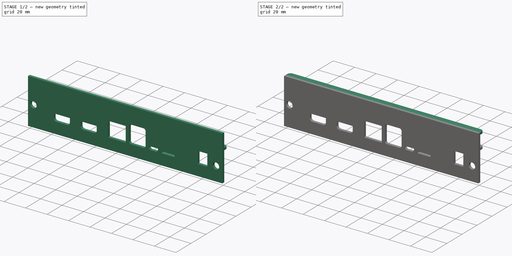
[diagram: build sequence overview — one tinted view per stage of 2, left to right]
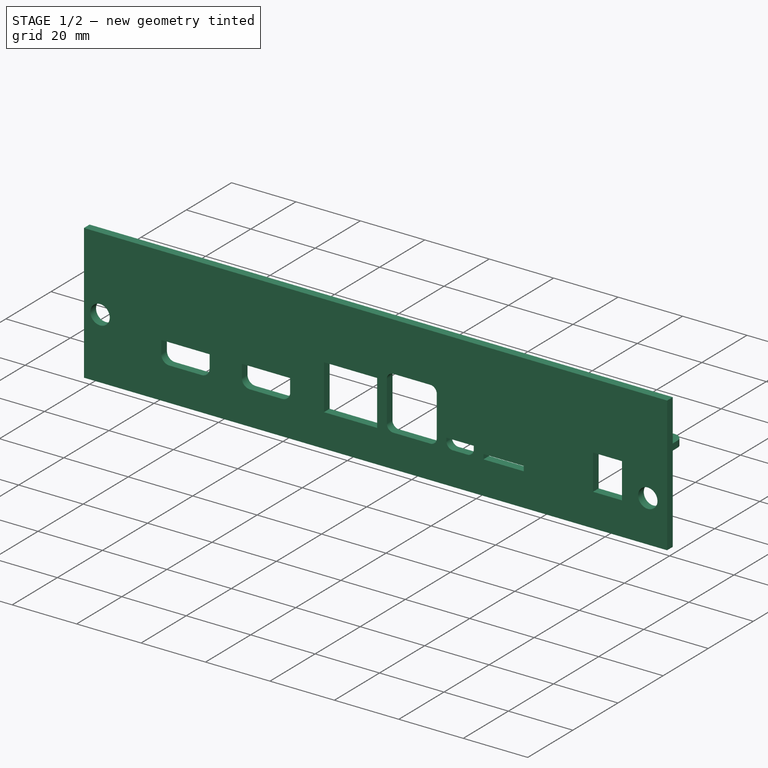
[diagram: stage 1 of 2 — iso view after this stage's code; geometry added in this stage tinted green]
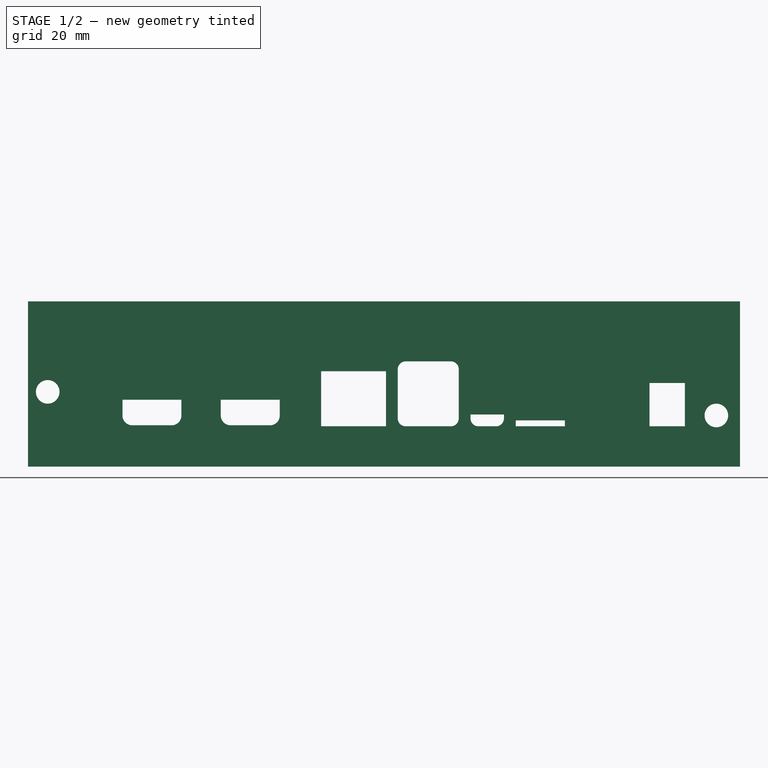
[diagram: stage 1 of 2 — front view after this stage's code; geometry added in this stage tinted green]
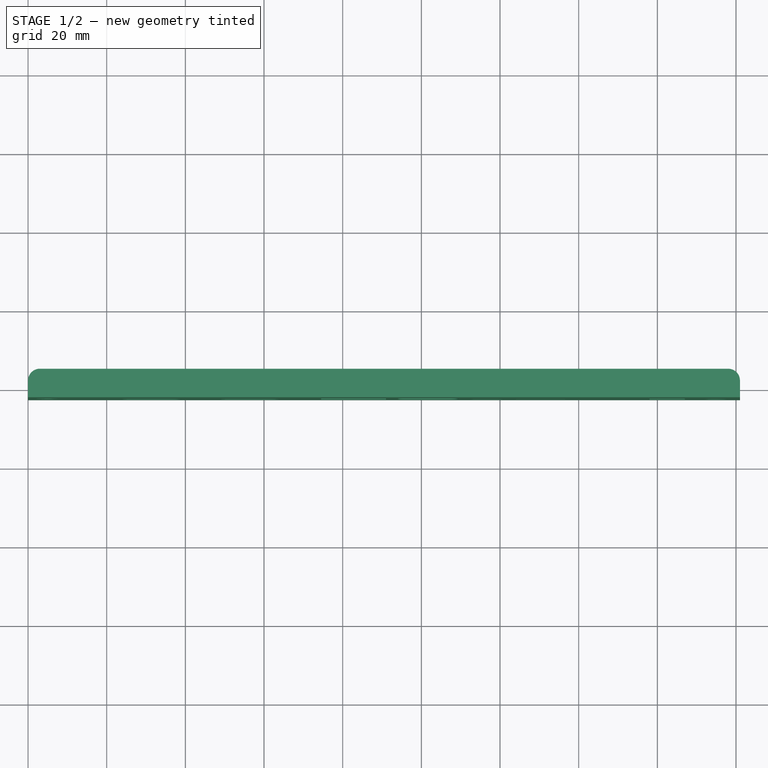
[diagram: stage 1 of 2 — top view after this stage's code; geometry added in this stage tinted green]
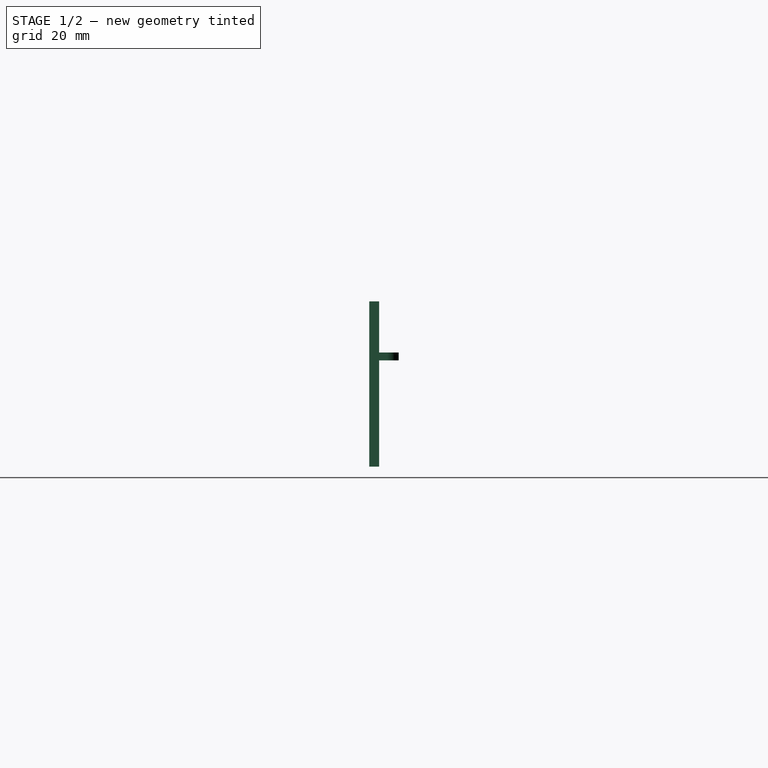
[diagram: stage 1 of 2 — right view after this stage's code; geometry added in this stage tinted green]
FCSTD DOCUMENT  (FreeCAD 0.20R29177 (Git))
Label: RPI_CM4_IO_Plate
License: Creative Commons Attribution
LicenseURL: http://creativecommons.org/licenses/by/4.0/
objects: Sketcher::SketchObject×3, PartDesign::Pad×3, App::Part×1, PartDesign::Body×1
note: 10 computed .brp shape members not serialized (recipe doc carries the construction recipe); baked Part::Feature solids carry a one-line shape summary decoded from their .brp

FEATURE [App::Part] Part
  Origin = -> Origin001
FEATURE [Sketcher::SketchObject] Sketch
  FullyConstrained = false
  Placement = pos=(0,0,0) rot=(1,0,0;1.5708rad)
  sketch-geometry (53):
    g0: LineSegment StartX=0 StartY=0 StartZ=0 EndX=181 EndY=0 EndZ=0
    g1: LineSegment StartX=181 StartY=0 StartZ=0 EndX=181 EndY=42 EndZ=0
    g2: LineSegment StartX=181 StartY=42 StartZ=0 EndX=0 EndY=42 EndZ=0
    g3: LineSegment StartX=0 StartY=42 StartZ=0 EndX=0 EndY=0 EndZ=0
    g4: Circle CenterX=175 CenterY=13 CenterZ=0 NormalX=0 NormalY=0 NormalZ=1 AngleXU=0 Radius=3
    g5: Circle CenterX=5 CenterY=19 CenterZ=0 NormalX=0 NormalY=0 NormalZ=1 AngleXU=0 Radius=3
    g6: LineSegment StartX=158 StartY=10.25 StartZ=0 EndX=167 EndY=10.25 EndZ=0
    g7: LineSegment StartX=167 StartY=10.25 StartZ=0 EndX=167 EndY=21.25 EndZ=0
    g8: LineSegment StartX=167 StartY=21.25 StartZ=0 EndX=158 EndY=21.25 EndZ=0
    g9: LineSegment StartX=158 StartY=21.25 StartZ=0 EndX=158 EndY=10.25 EndZ=0
    g10: LineSegment StartX=96 StartY=26.75 StartZ=0 EndX=107.5 EndY=26.75 EndZ=0
    g11: LineSegment StartX=109.5 StartY=24.75 StartZ=0 EndX=109.5 EndY=12.25 EndZ=0
    g12: LineSegment StartX=107.5 StartY=10.25 StartZ=0 EndX=96 EndY=10.25 EndZ=0
    g13: LineSegment StartX=94 StartY=12.25 StartZ=0 EndX=94 EndY=24.75 EndZ=0
    g14: LineSegment StartX=136.5 StartY=10.25 StartZ=0 EndX=124 EndY=10.25 EndZ=0
    g15: LineSegment StartX=124 StartY=10.25 StartZ=0 EndX=124 EndY=11.75 EndZ=0
    g16: LineSegment StartX=124 StartY=11.75 StartZ=0 EndX=136.5 EndY=11.75 EndZ=0
    g17: LineSegment StartX=136.5 StartY=11.75 StartZ=0 EndX=136.5 EndY=10.25 EndZ=0
    g18: LineSegment StartX=112.5 StartY=13.25 StartZ=0 EndX=121 EndY=13.25 EndZ=0
    g19: LineSegment StartX=121 StartY=13.25 StartZ=0 EndX=121 EndY=12.25 EndZ=0
    g20: LineSegment StartX=119 StartY=10.25 StartZ=0 EndX=114.5 EndY=10.25 EndZ=0
    g21: LineSegment StartX=112.5 StartY=12.25 StartZ=0 EndX=112.5 EndY=13.25 EndZ=0
    g22: LineSegment StartX=91 StartY=10.25 StartZ=0 EndX=74.5 EndY=10.25 EndZ=0
    g23: LineSegment StartX=74.5 StartY=10.25 StartZ=0 EndX=74.5 EndY=24.25 EndZ=0
    g24: LineSegment StartX=74.5 StartY=24.25 StartZ=0 EndX=91 EndY=24.25 EndZ=0
    g25: LineSegment StartX=91 StartY=24.25 StartZ=0 EndX=91 EndY=10.25 EndZ=0
    g26: LineSegment StartX=49 StartY=17 StartZ=0 EndX=64 EndY=17 EndZ=0
    g27: LineSegment StartX=64 StartY=17 StartZ=0 EndX=64 EndY=13 EndZ=0
    g28: LineSegment StartX=61.5 StartY=10.5 StartZ=0 EndX=51.5 EndY=10.5 EndZ=0
    g29: LineSegment StartX=49 StartY=13 StartZ=0 EndX=49 EndY=17 EndZ=0
    g30: LineSegment StartX=24 StartY=17 StartZ=0 EndX=39 EndY=17 EndZ=0
    g31: LineSegment StartX=39 StartY=17 StartZ=0 EndX=39 EndY=13 EndZ=0
    g32: LineSegment StartX=36.5 StartY=10.5 StartZ=0 EndX=26.5 EndY=10.5 EndZ=0
    g33: LineSegment StartX=24 StartY=13 StartZ=0 EndX=24 EndY=17 EndZ=0
    g34: ArcOfCircle CenterX=26.5 CenterY=13 CenterZ=0 NormalX=0 NormalY=0 NormalZ=1 AngleXU=0 Radius=2.5 StartAngle=3.14159 EndAngle=4.71239
    g35: ArcOfCircle CenterX=51.5 CenterY=13 CenterZ=0 NormalX=0 NormalY=0 NormalZ=1 AngleXU=0 Radius=2.5 StartAngle=3.14159 EndAngle=4.71239
    g36: GeomPoint X=49 Y=10.5 Z=0
    g37: ArcOfCircle CenterX=61.5 CenterY=13 CenterZ=0 NormalX=0 NormalY=0 NormalZ=1 AngleXU=0 Radius=2.5 StartAngle=4.71239 EndAngle=6.28319
    g38: GeomPoint X=64 Y=10.5 Z=0
    g39: ArcOfCircle CenterX=36.5 CenterY=13 CenterZ=0 NormalX=0 NormalY=0 NormalZ=1 AngleXU=0 Radius=2.5 StartAngle=4.71239 EndAngle=6.28319
    g40: GeomPoint X=39 Y=10.5 Z=0
    g41: ArcOfCircle CenterX=114.5 CenterY=12.25 CenterZ=0 NormalX=0 NormalY=0 NormalZ=1 AngleXU=0 Radius=2 StartAngle=3.14159 EndAngle=4.71239
    g42: GeomPoint X=112.5 Y=10.25 Z=0
    g43: ArcOfCircle CenterX=119 CenterY=12.25 CenterZ=0 NormalX=0 NormalY=0 NormalZ=1 AngleXU=0 Radius=2 StartAngle=4.71239 EndAngle=6.28319
    g44: GeomPoint X=121 Y=10.25 Z=0
    g45: ArcOfCircle CenterX=96 CenterY=12.25 CenterZ=0 NormalX=0 NormalY=0 NormalZ=1 AngleXU=0 Radius=2 StartAngle=3.14159 EndAngle=4.71239
    g46: GeomPoint X=94 Y=10.25 Z=0
    g47: ArcOfCircle CenterX=107.5 CenterY=12.25 CenterZ=0 NormalX=0 NormalY=0 NormalZ=1 AngleXU=0 Radius=2 StartAngle=4.71239 EndAngle=6.28319
    g48: GeomPoint X=109.5 Y=10.25 Z=0
    g49: ArcOfCircle CenterX=96 CenterY=24.75 CenterZ=0 NormalX=0 NormalY=0 NormalZ=1 AngleXU=0 Radius=2 StartAngle=1.5708 EndAngle=3.14159
    g50: GeomPoint X=94 Y=26.75 Z=0
    g51: ArcOfCircle CenterX=107.5 CenterY=24.75 CenterZ=0 NormalX=0 NormalY=0 NormalZ=1 AngleXU=0 Radius=2 StartAngle=6e-16 EndAngle=1.5708
    g52: GeomPoint X=109.5 Y=26.75 Z=0
  constraints (138):
    c: Coincident(g0,g1)
    c: Coincident(g1,g2)
    c: Coincident(g2,g3)
    c: Coincident(g3,g0)
    c: Horizontal(g0)
    c: Horizontal(g2)
    c: Vertical(g1)
    c: Vertical(g3)
    c: Coincident(g0,g-1)
    c: DistanceX(g0,g0) = 181
    c: DistanceY(g1,g1) = 42
    c: Diameter(g5) = 6
    c: Diameter(g4) = 6
    c: Distance(g5,g0) = 19
    c: Distance(g4,g0) = 13
    c: Distance(g5,g3) = 5
    c: Distance(g4,g1) = 6
    c: Coincident(g6,g7)
    c: Coincident(g7,g8)
    c: Coincident(g8,g9)
    c: Coincident(g9,g6)
    c: Horizontal(g6)
    c: Horizontal(g8)
    c: Vertical(g7)
    c: Vertical(g9)
    c: DistanceX(g8,g8) = 9
    c: DistanceY(g9,g9) = 11
    c: DistanceX(g6) = 167
    c: DistanceY(g6) = 10.25
    c: Horizontal(g10)
    c: Horizontal(g12)
    c: Vertical(g11)
    c: Vertical(g13)
    c: Coincident(g14,g15)
    c: Coincident(g15,g16)
    c: Coincident(g16,g17)
    c: Coincident(g17,g14)
    c: Horizontal(g14)
    c: Horizontal(g16)
    c: Vertical(g15)
    c: Vertical(g17)
    c: DistanceX(g14) = 136.5
    c: DistanceY(g14) = 10.25
    c: DistanceX(g16,g16) = 12.5
    c: DistanceY(g15,g15) = 1.5
    c: DistanceX(g48) = 109.5
    c: DistanceY(g48) = 10.25
    c: DistanceX(g46,g48) = 15.5
    c: Coincident(g18,g19)
    c: Coincident(g21,g18)
    c: Horizontal(g18)
    c: Horizontal(g20)
    c: Vertical(g19)
    c: Vertical(g21)
    c: DistanceX(g44) = 121
    c: DistanceY(g44) = 10.25
    c: DistanceY(g46,g50) = 16.5
    c: Coincident(g22,g23)
    c: Coincident(g23,g24)
    c: Coincident(g24,g25)
    c: Coincident(g25,g22)
    c: Horizontal(g22)
    c: Horizontal(g24)
    c: Vertical(g23)
    c: Vertical(g25)
    c: DistanceX(g22) = 91
    c: DistanceY(g22) = 10.25
    c: DistanceX(g24,g24) = 16.5
    c: DistanceY(g23,g23) = 14
    c: Coincident(g26,g27)
    c: Coincident(g29,g26)
    c: Horizontal(g26)
    c: Horizontal(g28)
    c: Vertical(g27)
    c: Vertical(g29)
    c: DistanceX(g38) = 64
    c: DistanceY(g38) = 10.5
    c: DistanceX(g26,g26) = 15
    c: DistanceY(g36,g29) = 6.5
    c: Coincident(g30,g31)
    c: Coincident(g33,g30)
    c: Horizontal(g30)
    c: Horizontal(g32)
    c: Vertical(g31)
    c: Vertical(g33)
    c: DistanceX(g40) = 39
    c: DistanceY(g40) = 10.5
    c: DistanceX(g30,g30) = 15
    c: DistanceX(g18,g18) = 8.5
    c: DistanceY(g42,g21) = 3
    c: Tangent(g33,g34) = 1.5708
    c: Tangent(g32,g34) = 1.5708
    c: Radius(g34) = 2.5
    c: PointOnObject(g36,g29)
    c: PointOnObject(g36,g28)
    c: Tangent(g29,g35) = 1.5708
    c: Tangent(g28,g35) = 1.5708
    c: PointOnObject(g38,g28)
    c: PointOnObject(g38,g27)
    c: Tangent(g28,g37) = 1.5708
    c: Tangent(g27,g37) = 1.5708
    c: PointOnObject(g40,g32)
    c: PointOnObject(g40,g31)
    c: Tangent(g32,g39) = 1.5708
    c: Tangent(g31,g39) = 1.5708
    c: Radius(g39) = 2.5
    c: Radius(g35) = 2.5
    c: Radius(g37) = 2.5
    c: PointOnObject(g42,g21)
    c: PointOnObject(g42,g20)
    c: Tangent(g21,g41) = 1.5708
    c: Tangent(g20,g41) = 1.5708
    c: PointOnObject(g44,g20)
    c: PointOnObject(g44,g19)
    c: Tangent(g20,g43) = 1.5708
    c: Tangent(g19,g43) = 1.5708
    c: Radius(g43) = 2
    c: Radius(g41) = 2
    c: PointOnObject(g46,g12)
    c: PointOnObject(g46,g13)
    c: Tangent(g12,g45) = 1.5708
    c: Tangent(g13,g45) = 1.5708
    c: PointOnObject(g48,g12)
    c: PointOnObject(g48,g11)
    c: Tangent(g12,g47) = 1.5708
    c: Tangent(g11,g47) = 1.5708
    c: PointOnObject(g50,g13)
    c: PointOnObject(g50,g10)
    c: Tangent(g13,g49) = 1.5708
    c: Tangent(g10,g49) = 1.5708
    c: PointOnObject(g52,g10)
    c: PointOnObject(g52,g11)
    c: Tangent(g10,g51) = 1.5708
    c: Tangent(g11,g51) = 1.5708
    c: Radius(g51) = 2
    c: Radius(g49) = 2
    c: Radius(g45) = 2
    c: Radius(g47) = 2
FEATURE [PartDesign::Pad] Pad
  Direction = (0,-1,2e-16)
  Length = 2.5
  Length2 = 10
  Placement = pos=(0,0,0) rot=(1,0,0;1.5708rad)
  Profile = -> Sketch
  ReferenceAxis = -> Sketch [N_Axis]
  Type = 0
FEATURE [Sketcher::SketchObject] Sketch001
  AttachmentOffset = pos=(0,0,27) rot=(0,0,1;0rad)
  FullyConstrained = true
  MapMode = 2
  Placement = pos=(0,0,27) rot=(0,0,1;0rad)
  Support = -> [Part]
  sketch-geometry (8):
    g0: LineSegment StartX=0 StartY=0 StartZ=0 EndX=181 EndY=0 EndZ=0
    g1: LineSegment StartX=181 StartY=0 StartZ=0 EndX=181 EndY=2 EndZ=0
    g2: LineSegment StartX=178 StartY=5 StartZ=0 EndX=3 EndY=5 EndZ=0
    g3: LineSegment StartX=0 StartY=2 StartZ=0 EndX=0 EndY=0 EndZ=0
    g4: ArcOfCircle CenterX=3 CenterY=2 CenterZ=0 NormalX=0 NormalY=0 NormalZ=1 AngleXU=0 Radius=3 StartAngle=1.5708 EndAngle=3.14159
    g5: GeomPoint X=0 Y=5 Z=0
    g6: ArcOfCircle CenterX=178 CenterY=2 CenterZ=0 NormalX=0 NormalY=0 NormalZ=1 AngleXU=0 Radius=3 StartAngle=7e-16 EndAngle=1.5708
    g7: GeomPoint X=181 Y=5 Z=0
  constraints (19):
    c: Coincident(g0,g1)
    c: Coincident(g3,g0)
    c: Horizontal(g0)
    c: Horizontal(g2)
    c: Vertical(g1)
    c: Vertical(g3)
    c: Coincident(g0,g-1)
    c: DistanceX(g5,g7) = 181
    c: DistanceY(g1,g7) = 5
    c: PointOnObject(g5,g3)
    c: PointOnObject(g5,g2)
    c: Tangent(g3,g4) = -1.5708
    c: Tangent(g2,g4) = -1.5708
    c: PointOnObject(g7,g1)
    c: PointOnObject(g7,g2)
    c: Tangent(g1,g6) = -1.5708
    c: Tangent(g2,g6) = -1.5708
    c: Radius(g4) = 3
    c: Radius(g6) = 3
FEATURE [PartDesign::Pad] Pad001
  BaseFeature = -> Pad
  Direction = (0,0,1)
  Length = 2
  Length2 = 10
  Placement = pos=(0,0,0) rot=(1,0,0;1.5708rad)
  Profile = -> Sketch001
  ReferenceAxis = -> Sketch001 [N_Axis]
  Type = 0
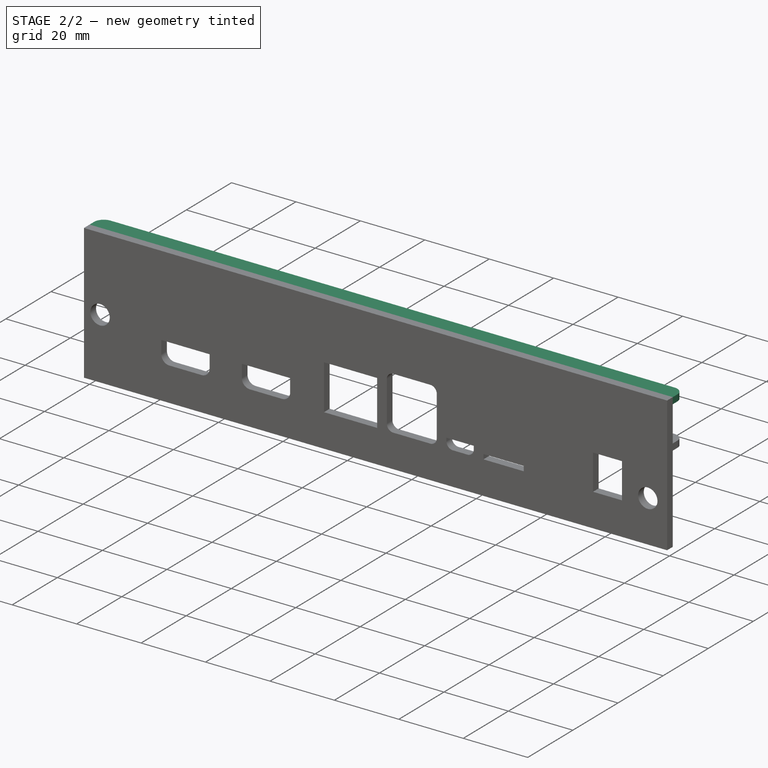
[diagram: stage 2 of 2 — iso view after this stage's code; geometry added in this stage tinted green]
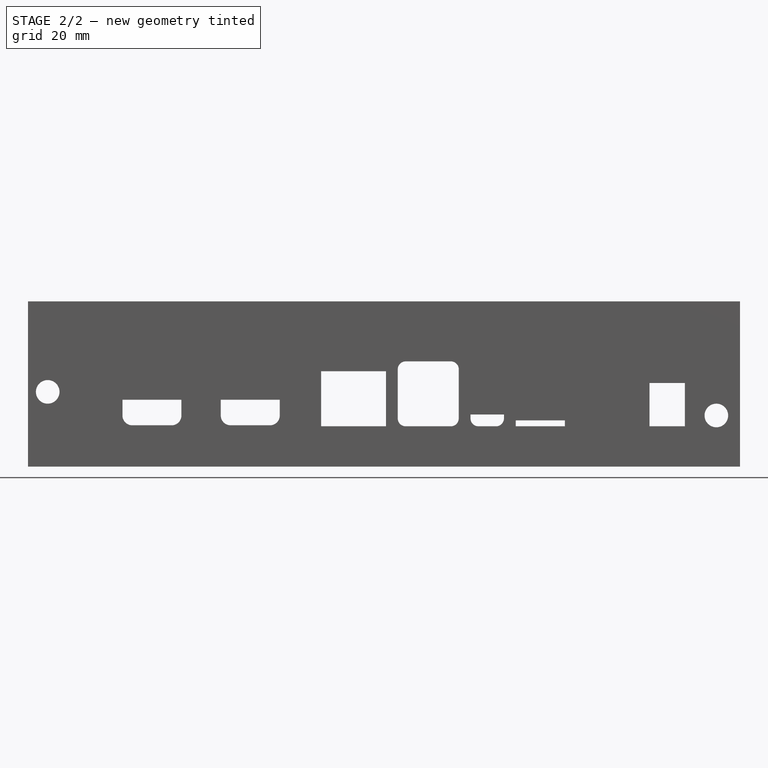
[diagram: stage 2 of 2 — front view after this stage's code; geometry added in this stage tinted green]
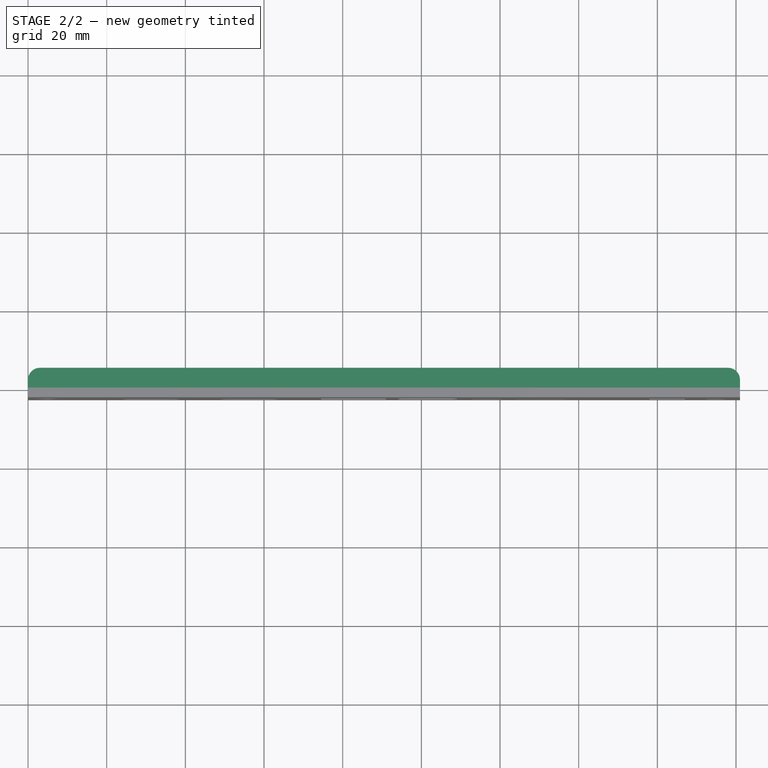
[diagram: stage 2 of 2 — top view after this stage's code; geometry added in this stage tinted green]
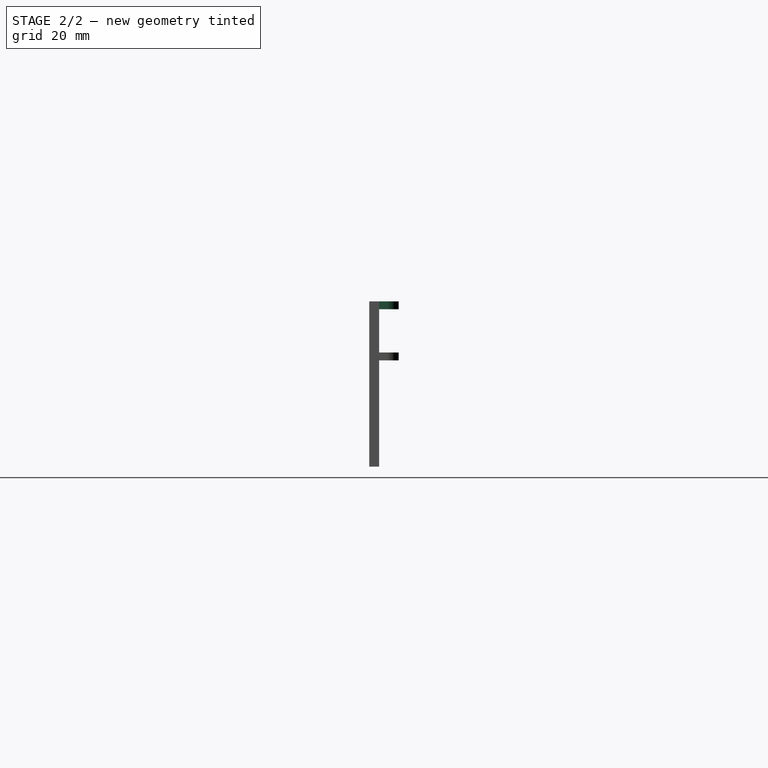
[diagram: stage 2 of 2 — right view after this stage's code; geometry added in this stage tinted green]
FEATURE [Sketcher::SketchObject] Sketch002
  AttachmentOffset = pos=(0,0,40) rot=(0,0,1;0rad)
  FullyConstrained = true
  MapMode = 5
  Placement = pos=(0,0,40) rot=(0,0,1;0rad)
  Support = -> [XY_Plane]
  sketch-geometry (8):
    g0: LineSegment StartX=0 StartY=0 StartZ=0 EndX=181 EndY=0 EndZ=0
    g1: LineSegment StartX=181 StartY=0 StartZ=0 EndX=181 EndY=2 EndZ=0
    g2: LineSegment StartX=178 StartY=5 StartZ=0 EndX=3 EndY=5 EndZ=0
    g3: LineSegment StartX=0 StartY=2 StartZ=0 EndX=0 EndY=0 EndZ=0
    g4: ArcOfCircle CenterX=3 CenterY=2 CenterZ=0 NormalX=0 NormalY=0 NormalZ=1 AngleXU=0 Radius=3 StartAngle=1.5708 EndAngle=3.14159
    g5: GeomPoint X=0 Y=5 Z=0
    g6: ArcOfCircle CenterX=178 CenterY=2 CenterZ=0 NormalX=0 NormalY=0 NormalZ=1 AngleXU=0 Radius=3 StartAngle=1e-16 EndAngle=1.5708
    g7: GeomPoint X=181 Y=5 Z=0
  constraints (19):
    c: Coincident(g0,g1)
    c: Coincident(g3,g0)
    c: Horizontal(g0)
    c: Horizontal(g2)
    c: Vertical(g1)
    c: Vertical(g3)
    c: Coincident(g0,g-1)
    c: DistanceY(g1,g7) = 5
    c: DistanceX(g5,g7) = 181
    c: PointOnObject(g5,g3)
    c: PointOnObject(g5,g2)
    c: Tangent(g3,g4) = -1.5708
    c: Tangent(g2,g4) = -1.5708
    c: PointOnObject(g7,g2)
    c: PointOnObject(g7,g1)
    c: Tangent(g2,g6) = -1.5708
    c: Tangent(g1,g6) = -1.5708
    c: Radius(g6) = 3
    c: Radius(g4) = 3
FEATURE [PartDesign::Pad] Pad002
  BaseFeature = -> Pad001
  Direction = (0,0,1)
  Length = 2
  Length2 = 10
  Placement = pos=(0,0,0) rot=(1,0,0;1.5708rad)
  Profile = -> Sketch002
  ReferenceAxis = -> Sketch002 [N_Axis]
  Type = 0
FEATURE [PartDesign::Body] Body
  Group = -> [Sketch,Pad,Sketch001,Pad001,Sketch002,Pad002]
  Origin = -> Origin
  Tip = -> Pad002
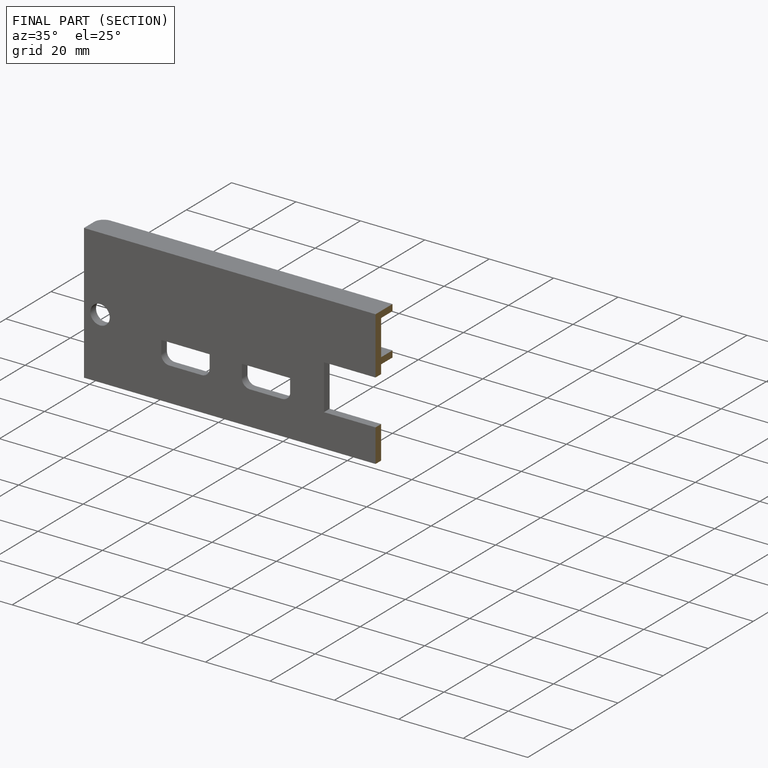
[diagram: finished part — half-section view (interior)]
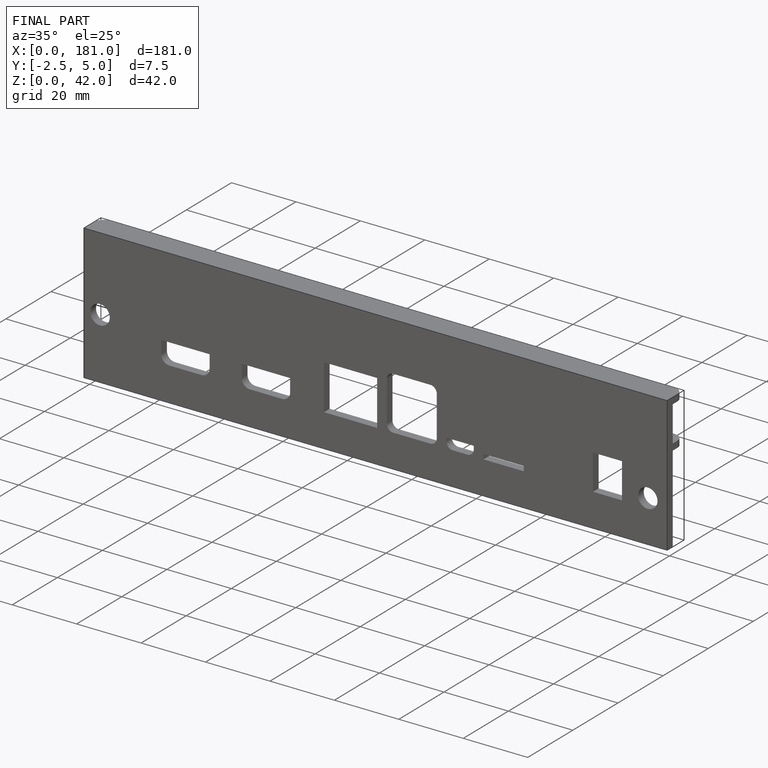
[diagram: finished part — iso view with bounding-box wireframe]
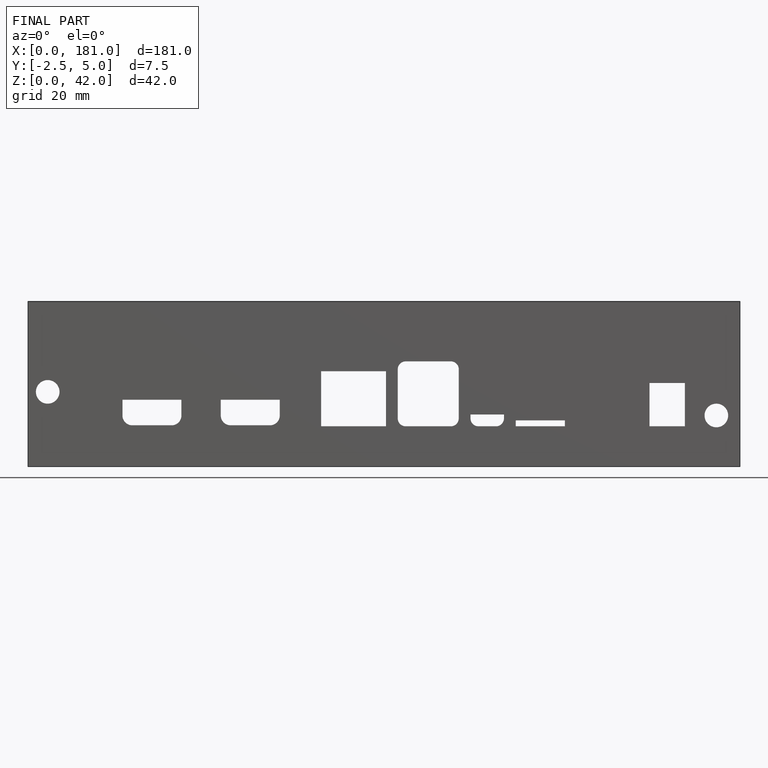
[diagram: finished part — front view with bounding-box wireframe]
